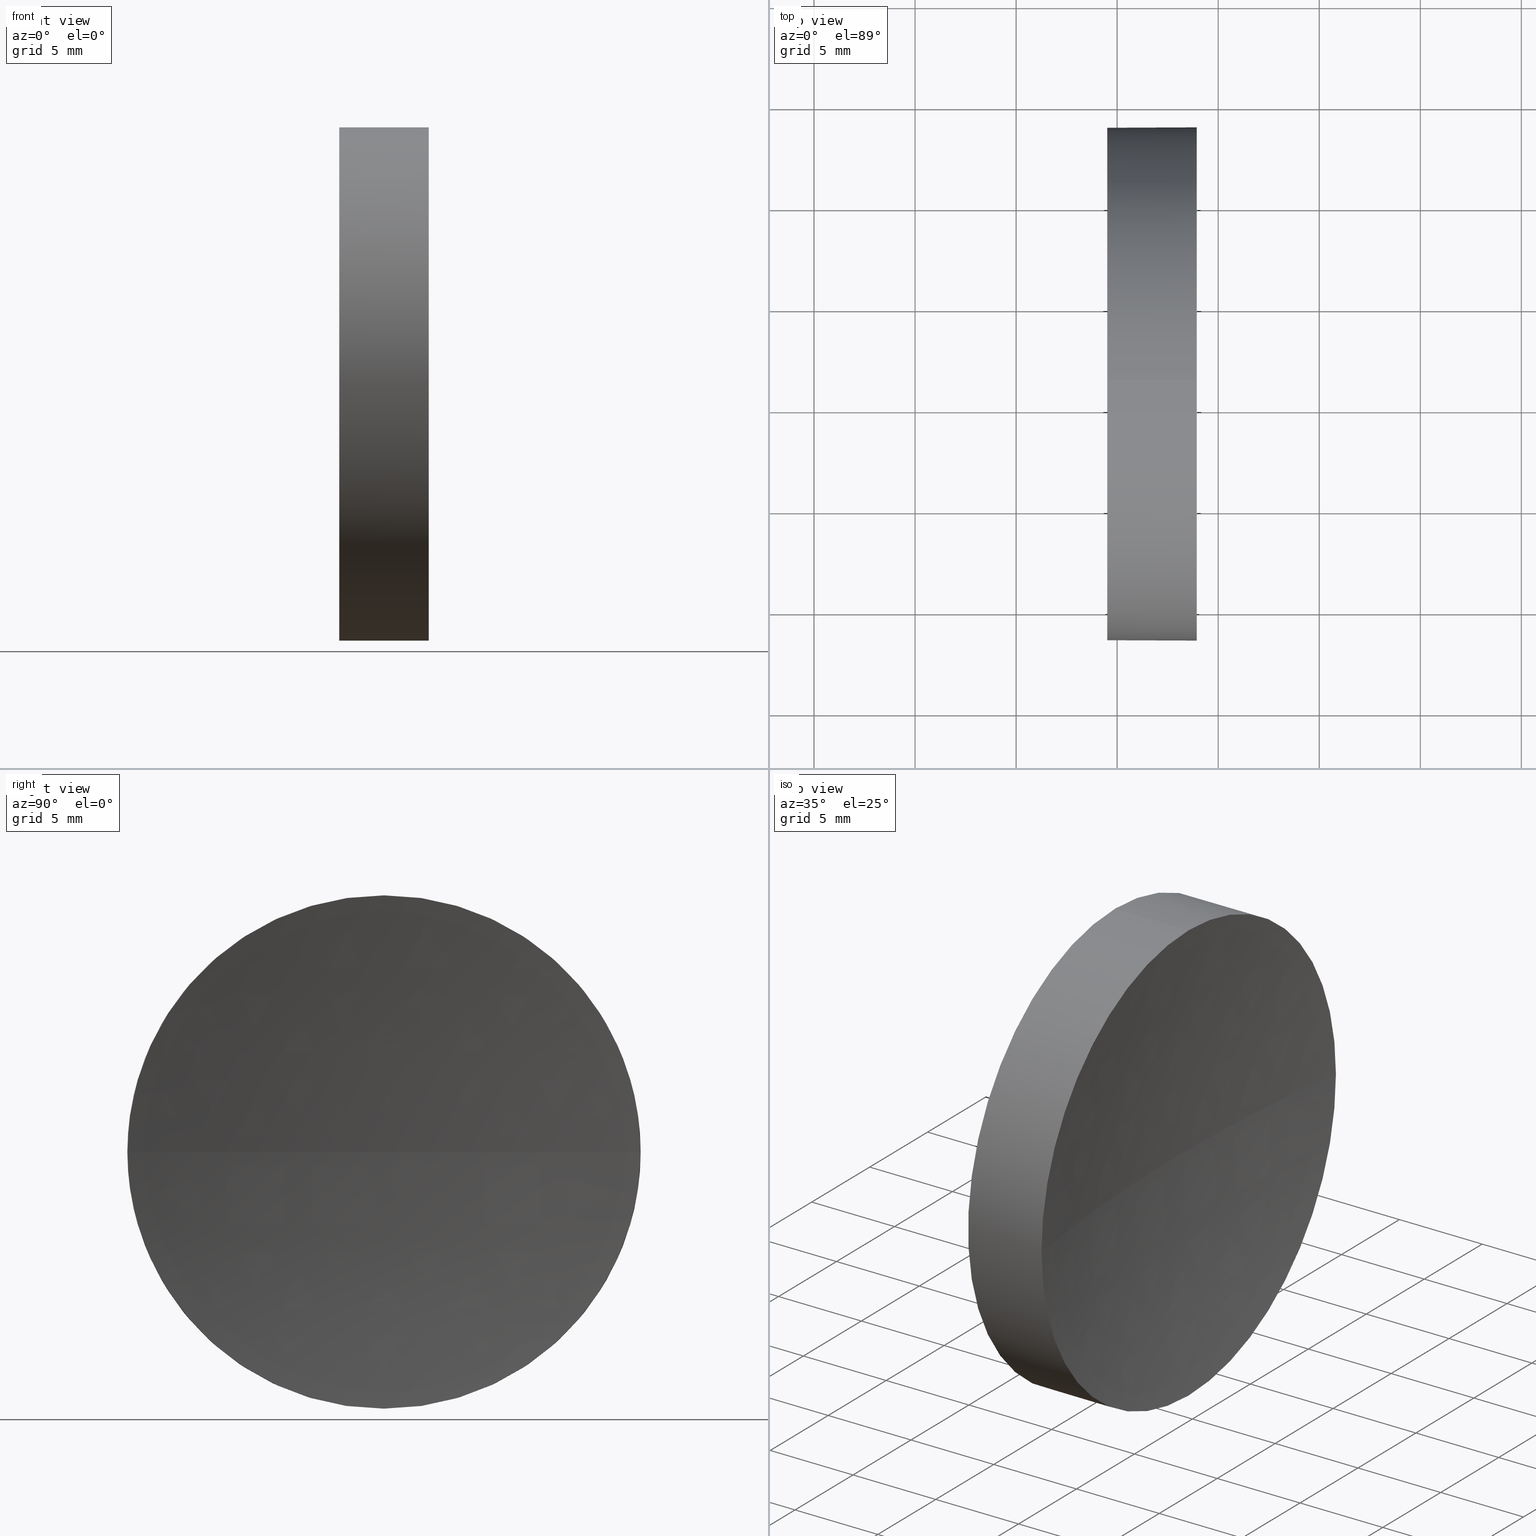
[diagram: canonical four-view strip — front | top / right | iso, engineering-drawing reading convention]
A machine part, canonical four-view strip (front | top / right | iso — engineering-drawing reading convention). The complete STEP part file that produces these views, byte-faithful:
ISO-10303-21;
HEADER;
FILE_DESCRIPTION (( 'STEP AP214' ),
    '1' );
FILE_NAME ('120311.STEP',
    '2019-06-26T07:28:04',
    ( '' ),
    ( '' ),
    'SwSTEP 2.0',
    'SolidWorks 2016',
    '' );
FILE_SCHEMA (( 'AUTOMOTIVE_DESIGN' ));
ENDSEC;

DATA;
#1 = ORIENTED_EDGE ( 'NONE', *, *, #82, .T. ) ;
#2 = APPLICATION_PROTOCOL_DEFINITION ( 'draft international standard', 'automotive_design', 1998, #86 ) ;
#3 = AXIS2_PLACEMENT_3D ( 'NONE', #100, #25, #39 ) ;
#4 = ORIENTED_EDGE ( 'NONE', *, *, #168, .F. ) ;
#5 = FACE_OUTER_BOUND ( 'NONE', #158, .T. ) ;
#6 = CARTESIAN_POINT ( 'NONE',  ( 111.9552297575605700, 71.19398908659370300, -12.70000000000001000 ) ) ;
#7 = AXIS2_PLACEMENT_3D ( 'NONE', #184, #51, #123 ) ;
#8 = ORIENTED_EDGE ( 'NONE', *, *, #103, .F. ) ;
#9 = SURFACE_STYLE_USAGE ( .BOTH. , #176 ) ;
#10 = UNCERTAINTY_MEASURE_WITH_UNIT (LENGTH_MEASURE( 1.000000000000000100E-005 ), #107, 'distance_accuracy_value', 'NONE');
#11 = DIRECTION ( 'NONE',  ( -1.000000000000000000, 0.0000000000000000000, 0.0000000000000000000 ) ) ;
#12 = CARTESIAN_POINT ( 'NONE',  ( 111.9552297575605700, 71.19398908659370300, 12.70000000000001000 ) ) ;
#13 = PRESENTATION_STYLE_ASSIGNMENT (( #170 ) ) ;
#14 = ORIENTED_EDGE ( 'NONE', *, *, #103, .T. ) ;
#15 = DIRECTION ( 'NONE',  ( -1.000000000000000000, -0.0000000000000000000, -0.0000000000000000000 ) ) ;
#16 = VERTEX_POINT ( 'NONE', #17 ) ;
#17 = CARTESIAN_POINT ( 'NONE',  ( 123.9409503829447100, 58.49398908659372900, 0.0000000000000000000 ) ) ;
#18 = CIRCLE ( 'NONE', #134, 12.70000000000001700 ) ;
#19 = CYLINDRICAL_SURFACE ( 'NONE', #116, 12.70000000000001000 ) ;
#20 = AXIS2_PLACEMENT_3D ( 'NONE', #66, #178, #142 ) ;
#21 = ORIENTED_EDGE ( 'NONE', *, *, #75, .F. ) ;
#22 = AXIS2_PLACEMENT_3D ( 'NONE', #153, #54, #83 ) ;
#23 = CIRCLE ( 'NONE', #137, 12.70000000000001700 ) ;
#24 =( NAMED_UNIT ( * ) PLANE_ANGLE_UNIT ( ) SI_UNIT ( $, .RADIAN. ) );
#25 = DIRECTION ( 'NONE',  ( 0.0000000000000000000, -1.224646799147353200E-016, 1.000000000000000000 ) ) ;
#26 = ORIENTED_EDGE ( 'NONE', *, *, #117, .T. ) ;
#27 = CARTESIAN_POINT ( 'NONE',  ( 111.9552297575605700, 71.19398908659370300, 0.0000000000000000000 ) ) ;
#28 = APPLICATION_CONTEXT ( 'automotive_design' ) ;
#29 = UNCERTAINTY_MEASURE_WITH_UNIT (LENGTH_MEASURE( 1.000000000000000100E-005 ), #99, 'distance_accuracy_value', 'NONE');
#30 = EDGE_CURVE ( 'NONE', #16, #144, #18, .T. ) ;
#31 = VECTOR ( 'NONE', #73, 1000.000000000000000 ) ;
#32 = ORIENTED_EDGE ( 'NONE', *, *, #45, .F. ) ;
#33 = STYLED_ITEM ( 'NONE', ( #13 ), #62 ) ;
#34 = DIRECTION ( 'NONE',  ( -1.000000000000000000, -0.0000000000000000000, -0.0000000000000000000 ) ) ;
#35 = PLANE ( 'NONE',  #110 ) ;
#36 = DIRECTION ( 'NONE',  ( 0.0000000000000000000, -1.000000000000000000, 0.0000000000000000000 ) ) ;
#37 =( NAMED_UNIT ( * ) SI_UNIT ( $, .STERADIAN. ) SOLID_ANGLE_UNIT ( ) );
#38 = ORIENTED_EDGE ( 'NONE', *, *, #117, .F. ) ;
#39 = DIRECTION ( 'NONE',  ( 0.0000000000000000000, -1.000000000000000000, -1.224646799147353500E-016 ) ) ;
#40 = STYLED_ITEM ( 'NONE', ( #128 ), #98 ) ;
#41 = FACE_OUTER_BOUND ( 'NONE', #154, .T. ) ;
#42 = PRODUCT_CONTEXT ( 'NONE', #28, 'mechanical' ) ;
#43 = PRODUCT_DEFINITION_SHAPE ( 'NONE', 'NONE',  #101 ) ;
#44 = CIRCLE ( 'NONE', #140, 12.70000000000001700 ) ;
#45 = EDGE_CURVE ( 'NONE', #96, #111, #136, .T. ) ;
#46 = SURFACE_STYLE_FILL_AREA ( #130 ) ;
#47 = ORIENTED_EDGE ( 'NONE', *, *, #75, .T. ) ;
#48 = CARTESIAN_POINT ( 'NONE',  ( 123.9409503829447100, 71.19398908659370300, 0.0000000000000000000 ) ) ;
#49 = ORIENTED_EDGE ( 'NONE', *, *, #108, .F. ) ;
#50 = CARTESIAN_POINT ( 'NONE',  ( 123.0068341785477300, 71.19398908659373100, 0.0000000000000000000 ) ) ;
#51 = DIRECTION ( 'NONE',  ( -1.000000000000000000, -0.0000000000000000000, -0.0000000000000000000 ) ) ;
#52 = EDGE_LOOP ( 'NONE', ( #49, #38, #151, #173 ) ) ;
#53 = CARTESIAN_POINT ( 'NONE',  ( 209.8068341785477200, 71.19398908659373100, 0.0000000000000000000 ) ) ;
#54 = DIRECTION ( 'NONE',  ( -1.000000000000000000, -0.0000000000000000000, -0.0000000000000000000 ) ) ;
#55 = PRODUCT_DEFINITION_FORMATION_WITH_SPECIFIED_SOURCE ( '�κ�', '', #91, .NOT_KNOWN. ) ;
#56 = DIRECTION ( 'NONE',  ( 0.0000000000000000000, 0.0000000000000000000, 1.000000000000000000 ) ) ;
#57 = ORIENTED_EDGE ( 'NONE', *, *, #58, .F. ) ;
#58 = EDGE_CURVE ( 'NONE', #111, #16, #44, .T. ) ;
#59 = PRESENTATION_LAYER_ASSIGNMENT (  '', '', ( #40 ) ) ;
#60 = EDGE_LOOP ( 'NONE', ( #72, #1, #21, #8, #26 ) ) ;
#61 = ADVANCED_FACE ( 'NONE', ( #185 ), #163, .F. ) ;
#62 = ADVANCED_BREP_SHAPE_REPRESENTATION ( '120311', ( #98, #143 ), #67 ) ;
#63 = DIRECTION ( 'NONE',  ( -1.000000000000000000, -0.0000000000000000000, -0.0000000000000000000 ) ) ;
#64 = SPHERICAL_SURFACE ( 'NONE', #179, 86.79999999999999700 ) ;
#65 = ORIENTED_EDGE ( 'NONE', *, *, #161, .T. ) ;
#66 = CARTESIAN_POINT ( 'NONE',  ( 119.5068341785477100, 71.19398908659370300, 0.0000000000000000000 ) ) ;
#67 =( GEOMETRIC_REPRESENTATION_CONTEXT ( 3 ) GLOBAL_UNCERTAINTY_ASSIGNED_CONTEXT ( ( #10 ) ) GLOBAL_UNIT_ASSIGNED_CONTEXT ( ( #107, #24, #182 ) ) REPRESENTATION_CONTEXT ( 'NONE', 'WORKASPACE' ) );
#68 = CARTESIAN_POINT ( 'NONE',  ( 123.9409503829447100, 83.89398908659370600, 1.555301434917135500E-015 ) ) ;
#69 = FILL_AREA_STYLE_COLOUR ( '', #132 ) ;
#70 = DIRECTION ( 'NONE',  ( 0.0000000000000000000, 0.0000000000000000000, 1.000000000000000000 ) ) ;
#71 = DIRECTION ( 'NONE',  ( 0.0000000000000000000, 0.0000000000000000000, 1.000000000000000000 ) ) ;
#72 = ORIENTED_EDGE ( 'NONE', *, *, #45, .T. ) ;
#73 = DIRECTION ( 'NONE',  ( -1.000000000000000000, -0.0000000000000000000, -0.0000000000000000000 ) ) ;
#74 = PRODUCT_RELATED_PRODUCT_CATEGORY ( 'part', '', ( #91 ) ) ;
#75 = EDGE_CURVE ( 'NONE', #88, #124, #157, .T. ) ;
#76 = LINE ( 'NONE', #12, #31 ) ;
#77 = CARTESIAN_POINT ( 'NONE',  ( 123.9409503829447100, 71.19398908659370300, 0.0000000000000000000 ) ) ;
#78 = AXIS2_PLACEMENT_3D ( 'NONE', #92, #159, #160 ) ;
#79 = CLOSED_SHELL ( 'NONE', ( #174, #104, #61, #135, #89 ) ) ;
#80 = FILL_AREA_STYLE ('',( #97 ) ) ;
#81 = PRODUCT_DEFINITION_CONTEXT ( 'detailed design', #86, 'design' ) ;
#82 = EDGE_CURVE ( 'NONE', #111, #124, #94, .T. ) ;
#83 = DIRECTION ( 'NONE',  ( 0.0000000000000000000, 0.0000000000000000000, 1.000000000000000000 ) ) ;
#84 = CARTESIAN_POINT ( 'NONE',  ( 123.9409503829447100, 71.19398908659370300, 0.0000000000000000000 ) ) ;
#85 =( NAMED_UNIT ( * ) SI_UNIT ( $, .STERADIAN. ) SOLID_ANGLE_UNIT ( ) );
#86 = APPLICATION_CONTEXT ( 'automotive_design' ) ;
#87 =( NAMED_UNIT ( * ) PLANE_ANGLE_UNIT ( ) SI_UNIT ( $, .RADIAN. ) );
#88 = VERTEX_POINT ( 'NONE', #141 ) ;
#89 = ADVANCED_FACE ( 'NONE', ( #41 ), #35, .F. ) ;
#90 =( GEOMETRIC_REPRESENTATION_CONTEXT ( 3 ) GLOBAL_UNCERTAINTY_ASSIGNED_CONTEXT ( ( #29 ) ) GLOBAL_UNIT_ASSIGNED_CONTEXT ( ( #99, #119, #37 ) ) REPRESENTATION_CONTEXT ( 'NONE', 'WORKASPACE' ) );
#91 = PRODUCT ( '120311', '120311', '', ( #42 ) ) ;
#92 = CARTESIAN_POINT ( 'NONE',  ( 209.8068341785477200, 71.19398908659373100, 0.0000000000000000000 ) ) ;
#93 = DIRECTION ( 'NONE',  ( -1.000000000000000000, -0.0000000000000000000, -0.0000000000000000000 ) ) ;
#94 = LINE ( 'NONE', #6, #115 ) ;
#95 = ORIENTED_EDGE ( 'NONE', *, *, #108, .T. ) ;
#96 = VERTEX_POINT ( 'NONE', #68 ) ;
#97 = FILL_AREA_STYLE_COLOUR ( '', #129 ) ;
#98 = MANIFOLD_SOLID_BREP ( '��ת1', #79 ) ;
#99 =( LENGTH_UNIT ( ) NAMED_UNIT ( * ) SI_UNIT ( .MILLI., .METRE. ) );
#100 = CARTESIAN_POINT ( 'NONE',  ( 209.8068341785477200, 71.19398908659373100, 0.0000000000000000000 ) ) ;
#101 = PRODUCT_DEFINITION ( 'δ֪', '', #55, #81 ) ;
#102 = ORIENTED_EDGE ( 'NONE', *, *, #82, .F. ) ;
#103 = EDGE_CURVE ( 'NONE', #144, #88, #76, .T. ) ;
#104 = ADVANCED_FACE ( 'NONE', ( #162 ), #64, .F. ) ;
#105 = DIRECTION ( 'NONE',  ( 0.0000000000000000000, 0.0000000000000000000, 1.000000000000000000 ) ) ;
#106 = CARTESIAN_POINT ( 'NONE',  ( 119.5068341785477100, 71.19398908659370300, 0.0000000000000000000 ) ) ;
#107 =( LENGTH_UNIT ( ) NAMED_UNIT ( * ) SI_UNIT ( .MILLI., .METRE. ) );
#108 = EDGE_CURVE ( 'NONE', #96, #133, #183, .T. ) ;
#109 = SHAPE_DEFINITION_REPRESENTATION ( #43, #62 ) ;
#110 = AXIS2_PLACEMENT_3D ( 'NONE', #106, #120, #122 ) ;
#111 = VERTEX_POINT ( 'NONE', #156 ) ;
#112 = DIRECTION ( 'NONE',  ( 0.0000000000000000000, 0.0000000000000000000, 1.000000000000000000 ) ) ;
#113 = SURFACE_STYLE_FILL_AREA ( #80 ) ;
#114 = CIRCLE ( 'NONE', #150, 86.79999999999999700 ) ;
#115 = VECTOR ( 'NONE', #34, 1000.000000000000000 ) ;
#116 = AXIS2_PLACEMENT_3D ( 'NONE', #27, #15, #70 ) ;
#117 = EDGE_CURVE ( 'NONE', #144, #96, #23, .T. ) ;
#118 = DIRECTION ( 'NONE',  ( 0.0000000000000000000, 0.0000000000000000000, 1.000000000000000000 ) ) ;
#119 =( NAMED_UNIT ( * ) PLANE_ANGLE_UNIT ( ) SI_UNIT ( $, .RADIAN. ) );
#120 = DIRECTION ( 'NONE',  ( 1.000000000000000000, 0.0000000000000000000, 0.0000000000000000000 ) ) ;
#121 = EDGE_LOOP ( 'NONE', ( #32, #95, #4, #57 ) ) ;
#122 = DIRECTION ( 'NONE',  ( 0.0000000000000000000, 0.0000000000000000000, -1.000000000000000000 ) ) ;
#123 = DIRECTION ( 'NONE',  ( 0.0000000000000000000, 0.0000000000000000000, 1.000000000000000000 ) ) ;
#124 = VERTEX_POINT ( 'NONE', #127 ) ;
#125 = DIRECTION ( 'NONE',  ( 0.0000000000000000000, 0.0000000000000000000, -1.000000000000000000 ) ) ;
#126 = PRESENTATION_LAYER_ASSIGNMENT (  '', '', ( #33 ) ) ;
#127 = CARTESIAN_POINT ( 'NONE',  ( 119.5068341785477100, 71.19398908659370300, -12.70000000000000300 ) ) ;
#128 = PRESENTATION_STYLE_ASSIGNMENT (( #9 ) ) ;
#129 = COLOUR_RGB ( '',1.000000000000000000, 1.000000000000000000, 1.000000000000000000 ) ;
#130 = FILL_AREA_STYLE ('',( #69 ) ) ;
#131 = APPLICATION_PROTOCOL_DEFINITION ( 'draft international standard', 'automotive_design', 1998, #28 ) ;
#132 = COLOUR_RGB ( '',1.000000000000000000, 1.000000000000000000, 1.000000000000000000 ) ;
#133 = VERTEX_POINT ( 'NONE', #50 ) ;
#134 = AXIS2_PLACEMENT_3D ( 'NONE', #147, #93, #118 ) ;
#135 = ADVANCED_FACE ( 'NONE', ( #5 ), #19, .T. ) ;
#136 = CIRCLE ( 'NONE', #152, 12.70000000000001700 ) ;
#137 = AXIS2_PLACEMENT_3D ( 'NONE', #84, #164, #112 ) ;
#138 = MECHANICAL_DESIGN_GEOMETRIC_PRESENTATION_REPRESENTATION (  '', ( #40 ), #90 ) ;
#139 = CIRCLE ( 'NONE', #22, 12.70000000000000300 ) ;
#140 = AXIS2_PLACEMENT_3D ( 'NONE', #77, #175, #105 ) ;
#141 = CARTESIAN_POINT ( 'NONE',  ( 119.5068341785477100, 71.19398908659370300, 12.70000000000000300 ) ) ;
#142 = DIRECTION ( 'NONE',  ( 0.0000000000000000000, 0.0000000000000000000, 1.000000000000000000 ) ) ;
#143 = AXIS2_PLACEMENT_3D ( 'NONE', #181, #56, #172 ) ;
#144 = VERTEX_POINT ( 'NONE', #169 ) ;
#145 = CYLINDRICAL_SURFACE ( 'NONE', #7, 12.70000000000001000 ) ;
#146 = ORIENTED_EDGE ( 'NONE', *, *, #161, .F. ) ;
#147 = CARTESIAN_POINT ( 'NONE',  ( 123.9409503829447100, 71.19398908659370300, 0.0000000000000000000 ) ) ;
#148 = DIRECTION ( 'NONE',  ( 0.0000000000000000000, 0.0000000000000000000, 1.000000000000000000 ) ) ;
#149 = ORIENTED_EDGE ( 'NONE', *, *, #30, .T. ) ;
#150 = AXIS2_PLACEMENT_3D ( 'NONE', #167, #125, #11 ) ;
#151 = ORIENTED_EDGE ( 'NONE', *, *, #30, .F. ) ;
#152 = AXIS2_PLACEMENT_3D ( 'NONE', #48, #63, #148 ) ;
#153 = CARTESIAN_POINT ( 'NONE',  ( 119.5068341785477100, 71.19398908659370300, 0.0000000000000000000 ) ) ;
#154 = EDGE_LOOP ( 'NONE', ( #47, #65 ) ) ;
#155 = MECHANICAL_DESIGN_GEOMETRIC_PRESENTATION_REPRESENTATION (  '', ( #33 ), #165 ) ;
#156 = CARTESIAN_POINT ( 'NONE',  ( 123.9409503829447100, 71.19398908659370300, -12.70000000000001500 ) ) ;
#157 = CIRCLE ( 'NONE', #20, 12.70000000000000300 ) ;
#158 = EDGE_LOOP ( 'NONE', ( #102, #177, #149, #14, #146 ) ) ;
#159 = DIRECTION ( 'NONE',  ( 0.0000000000000000000, 0.0000000000000000000, 1.000000000000000000 ) ) ;
#160 = DIRECTION ( 'NONE',  ( 0.0000000000000000000, -1.000000000000000000, 0.0000000000000000000 ) ) ;
#161 = EDGE_CURVE ( 'NONE', #124, #88, #139, .T. ) ;
#162 = FACE_OUTER_BOUND ( 'NONE', #121, .T. ) ;
#163 = SPHERICAL_SURFACE ( 'NONE', #78, 86.79999999999999700 ) ;
#164 = DIRECTION ( 'NONE',  ( -1.000000000000000000, -0.0000000000000000000, -0.0000000000000000000 ) ) ;
#165 =( GEOMETRIC_REPRESENTATION_CONTEXT ( 3 ) GLOBAL_UNCERTAINTY_ASSIGNED_CONTEXT ( ( #180 ) ) GLOBAL_UNIT_ASSIGNED_CONTEXT ( ( #186, #87, #85 ) ) REPRESENTATION_CONTEXT ( 'NONE', 'WORKASPACE' ) );
#166 = FACE_OUTER_BOUND ( 'NONE', #60, .T. ) ;
#167 = CARTESIAN_POINT ( 'NONE',  ( 209.8068341785477200, 71.19398908659373100, 0.0000000000000000000 ) ) ;
#168 = EDGE_CURVE ( 'NONE', #16, #133, #114, .T. ) ;
#169 = CARTESIAN_POINT ( 'NONE',  ( 123.9409503829447100, 71.19398908659370300, 12.70000000000001500 ) ) ;
#170 = SURFACE_STYLE_USAGE ( .BOTH. , #171 ) ;
#171 = SURFACE_SIDE_STYLE ('',( #46 ) ) ;
#172 = DIRECTION ( 'NONE',  ( 1.000000000000000000, 0.0000000000000000000, 0.0000000000000000000 ) ) ;
#173 = ORIENTED_EDGE ( 'NONE', *, *, #168, .T. ) ;
#174 = ADVANCED_FACE ( 'NONE', ( #166 ), #145, .T. ) ;
#175 = DIRECTION ( 'NONE',  ( -1.000000000000000000, -0.0000000000000000000, -0.0000000000000000000 ) ) ;
#176 = SURFACE_SIDE_STYLE ('',( #113 ) ) ;
#177 = ORIENTED_EDGE ( 'NONE', *, *, #58, .T. ) ;
#178 = DIRECTION ( 'NONE',  ( -1.000000000000000000, -0.0000000000000000000, -0.0000000000000000000 ) ) ;
#179 = AXIS2_PLACEMENT_3D ( 'NONE', #53, #71, #36 ) ;
#180 = UNCERTAINTY_MEASURE_WITH_UNIT (LENGTH_MEASURE( 1.000000000000000100E-005 ), #186, 'distance_accuracy_value', 'NONE');
#181 = CARTESIAN_POINT ( 'NONE',  ( 0.0000000000000000000, 0.0000000000000000000, 0.0000000000000000000 ) ) ;
#182 =( NAMED_UNIT ( * ) SI_UNIT ( $, .STERADIAN. ) SOLID_ANGLE_UNIT ( ) );
#183 = CIRCLE ( 'NONE', #3, 86.79999999999999700 ) ;
#184 = CARTESIAN_POINT ( 'NONE',  ( 111.9552297575605700, 71.19398908659370300, 0.0000000000000000000 ) ) ;
#185 = FACE_OUTER_BOUND ( 'NONE', #52, .T. ) ;
#186 =( LENGTH_UNIT ( ) NAMED_UNIT ( * ) SI_UNIT ( .MILLI., .METRE. ) );
ENDSEC;
END-ISO-10303-21;
